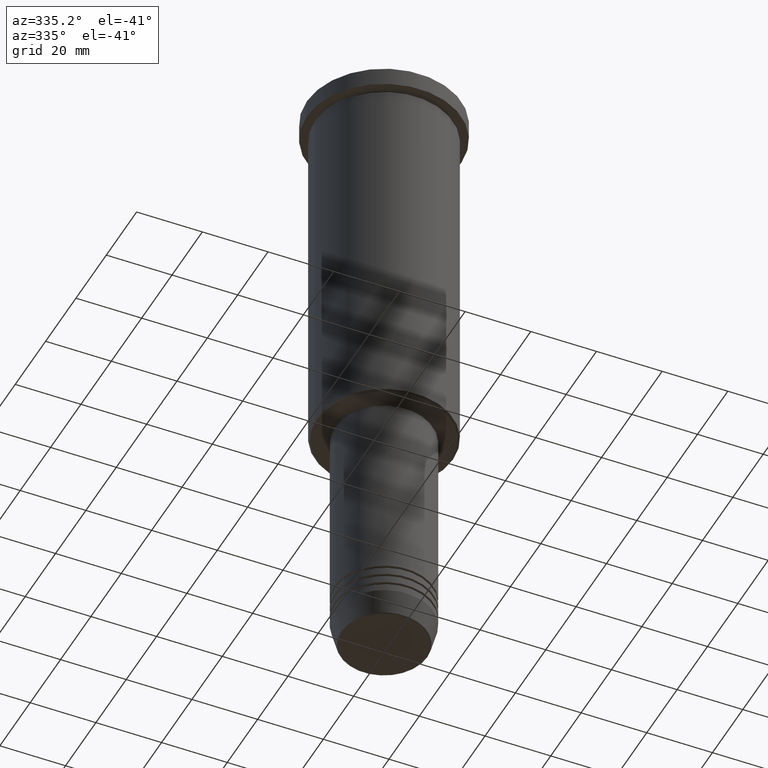
[diagram: clean part render]
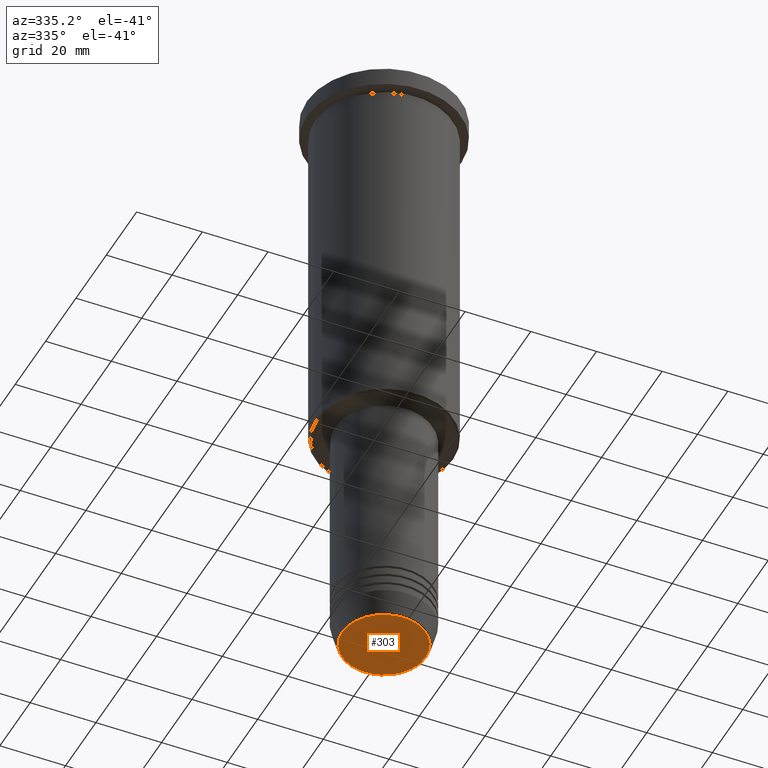
[diagram: same view with one face highlighted and labeled with its STEP entity id]
A machine part, auxiliary view. The second image highlights one B-rep face of the part: STEP entity #303.
In plain terms, the highlighted planar face has unit normal (0, -0, 1).
Its self-contained STEP definition (entity closure, byte-faithful):
#23 = CARTESIAN_POINT ( 'NONE',  ( 12.74069215899266538, 0.000000000000000000, -191.0000000000000000 ) ) ;
#43 = AXIS2_PLACEMENT_3D ( 'NONE', #674, #753, #579 ) ;
#44 = VERTEX_POINT ( 'NONE', #625 ) ;
#48 = DIRECTION ( 'NONE',  ( 0.000000000000000000, 0.000000000000000000, -1.000000000000000000 ) ) ;
#57 = CARTESIAN_POINT ( 'NONE',  ( 0.000000000000000000, 0.000000000000000000, -191.0000000000000000 ) ) ;
#81 = DIRECTION ( 'NONE',  ( 1.000000000000000000, 0.000000000000000000, 0.000000000000000000 ) ) ;
#114 = FACE_OUTER_BOUND ( 'NONE', #659, .T. ) ;
#144 = AXIS2_PLACEMENT_3D ( 'NONE', #983, #1163, #81 ) ;
#159 = ORIENTED_EDGE ( 'NONE', *, *, #971, .T. ) ;
#233 = VERTEX_POINT ( 'NONE', #23 ) ;
#303 = ADVANCED_FACE ( 'NONE', ( #114 ), #479, .F. ) ;
#397 = CIRCLE ( 'NONE', #144, 12.74069215899266538 ) ;
#479 = PLANE ( 'NONE',  #43 ) ;
#567 = AXIS2_PLACEMENT_3D ( 'NONE', #57, #48, #1041 ) ;
#579 = DIRECTION ( 'NONE',  ( 1.000000000000000000, 0.000000000000000000, 0.000000000000000000 ) ) ;
#625 = CARTESIAN_POINT ( 'NONE',  ( -12.74069215899266538, 1.589857736427681824E-15, -191.0000000000000000 ) ) ;
#659 = EDGE_LOOP ( 'NONE', ( #1031, #159 ) ) ;
#674 = CARTESIAN_POINT ( 'NONE',  ( 0.000000000000000000, 0.000000000000000000, -191.0000000000000000 ) ) ;
#687 = CIRCLE ( 'NONE', #567, 12.74069215899266538 ) ;
#753 = DIRECTION ( 'NONE',  ( 0.000000000000000000, -0.000000000000000000, 1.000000000000000000 ) ) ;
#796 = EDGE_CURVE ( 'NONE', #233, #44, #687, .T. ) ;
#971 = EDGE_CURVE ( 'NONE', #44, #233, #397, .T. ) ;
#983 = CARTESIAN_POINT ( 'NONE',  ( 0.000000000000000000, 0.000000000000000000, -191.0000000000000000 ) ) ;
#1031 = ORIENTED_EDGE ( 'NONE', *, *, #796, .T. ) ;
#1041 = DIRECTION ( 'NONE',  ( 1.000000000000000000, 0.000000000000000000, 0.000000000000000000 ) ) ;
#1163 = DIRECTION ( 'NONE',  ( 0.000000000000000000, 0.000000000000000000, -1.000000000000000000 ) ) ;